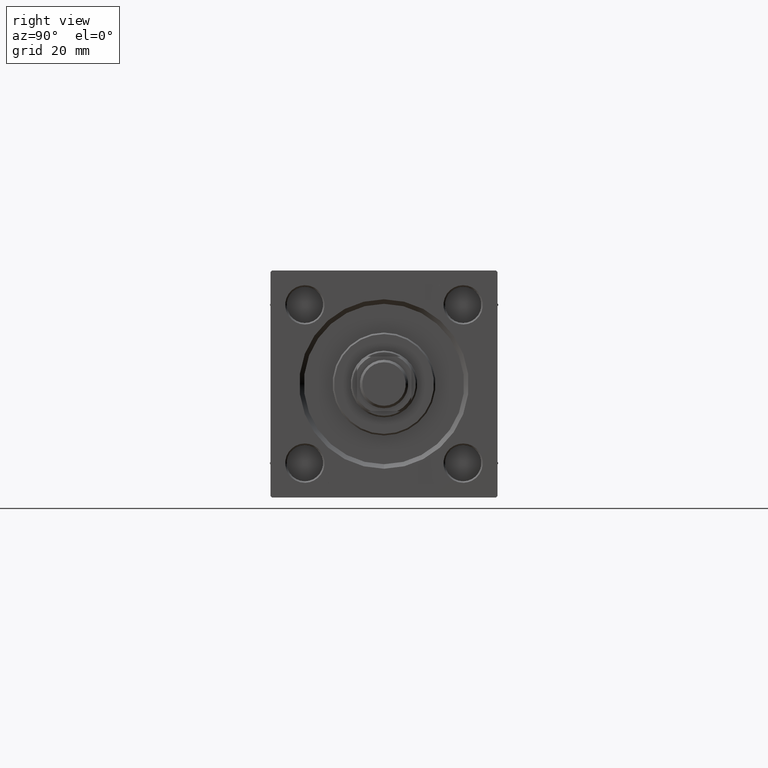
[diagram: clean part render]
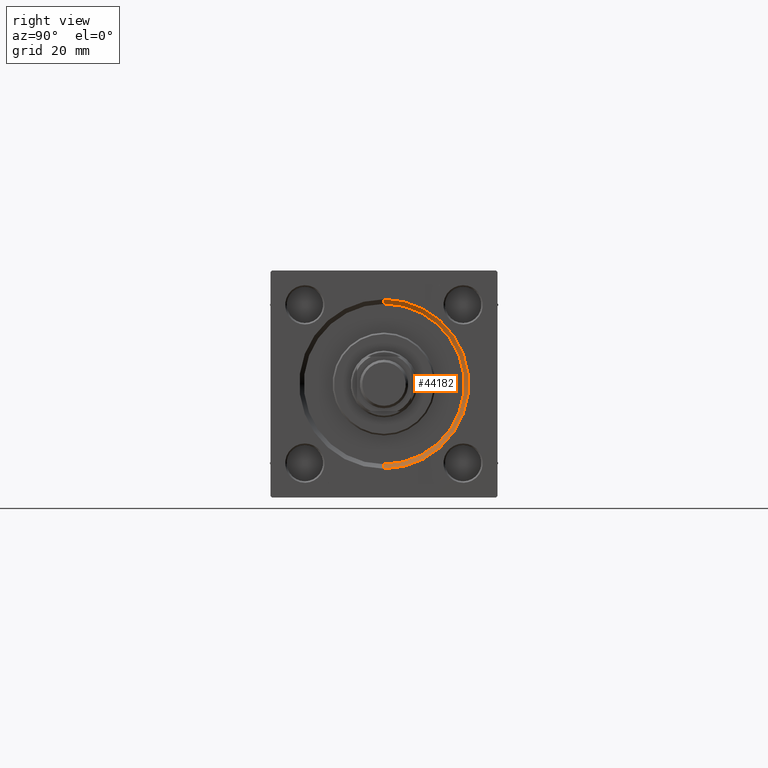
[diagram: same view with one face highlighted and labeled with its STEP entity id]
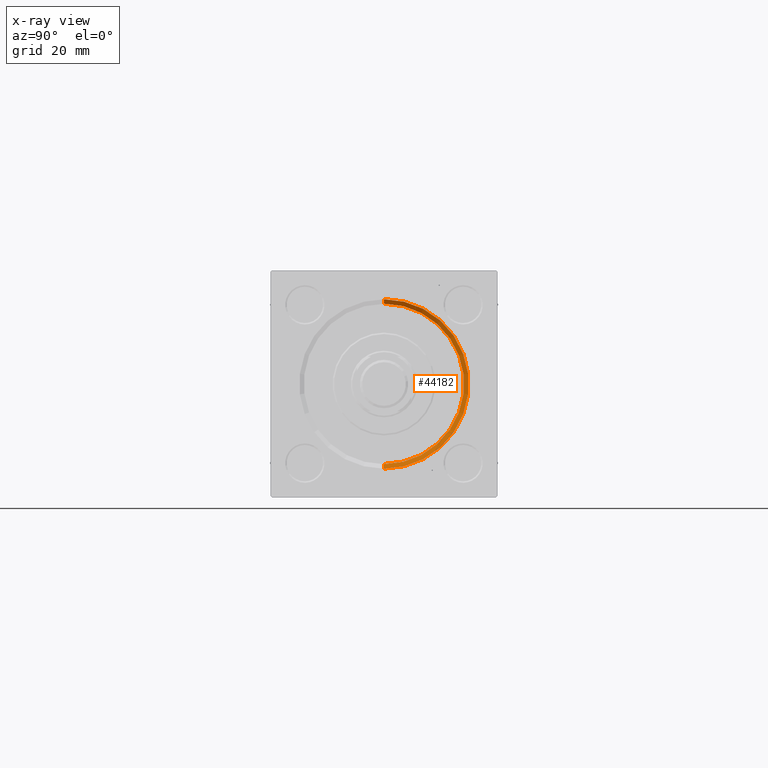
[diagram: x-ray of the same camera — body ghosted, the highlighted face saturated]
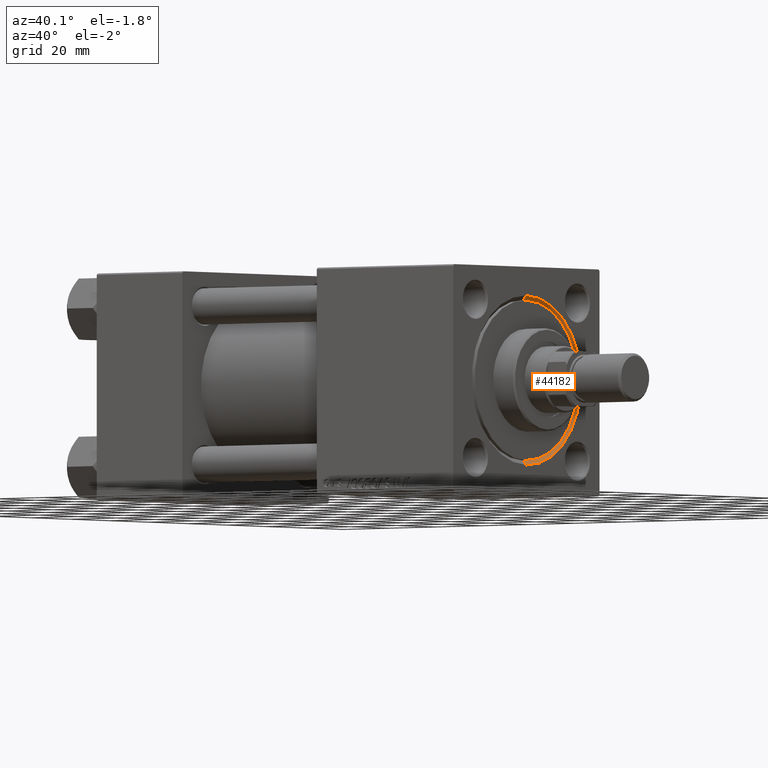
[diagram: same view with one face highlighted and labeled with its STEP entity id]
A machine part, right view. The second image highlights one B-rep face of the part: STEP entity #44182.
The next image is the same camera in x-ray: the body ghosted, the highlighted face saturated — about 0% of this face is hidden behind the body in this view.
A second angle (auxiliary view) of the same face is appended — the face is thin or edge-on in the first view.
In plain terms, the highlighted conical surface has half-angle 45 deg.
Its self-contained STEP definition (entity closure, byte-faithful):
#680 = DIRECTION ( 'NONE',  ( 1.000000000000000000, 0.000000000000000000, 0.000000000000000000 ) ) ;
#902 = AXIS2_PLACEMENT_3D ( 'NONE', #35773, #680, #16329 ) ;
#968 = ORIENTED_EDGE ( 'NONE', *, *, #1362, .F. ) ;
#1362 = EDGE_CURVE ( 'NONE', #31769, #27865, #11330, .T. ) ;
#2623 = EDGE_LOOP ( 'NONE', ( #968, #13484, #18294, #29579 ) ) ;
#3115 = EDGE_CURVE ( 'NONE', #27865, #11651, #25874, .T. ) ;
#10351 = AXIS2_PLACEMENT_3D ( 'NONE', #18079, #48557, #45215 ) ;
#11123 = VECTOR ( 'NONE', #31533, 1000.000000000000114 ) ;
#11231 = CARTESIAN_POINT ( 'NONE',  ( 152.5000000000000568, 3.245314017740486554E-15, 26.50000000000000355 ) ) ;
#11330 = LINE ( 'NONE', #27443, #11123 ) ;
#11651 = VERTEX_POINT ( 'NONE', #29953 ) ;
#13484 = ORIENTED_EDGE ( 'NONE', *, *, #17036, .F. ) ;
#14127 = CARTESIAN_POINT ( 'NONE',  ( 152.5000000000000568, 0.000000000000000000, -26.50000000000000355 ) ) ;
#16329 = DIRECTION ( 'NONE',  ( 0.000000000000000000, 0.000000000000000000, 1.000000000000000000 ) ) ;
#17036 = EDGE_CURVE ( 'NONE', #33169, #31769, #39341, .T. ) ;
#18079 = CARTESIAN_POINT ( 'NONE',  ( 154.0000000000000000, 0.000000000000000000, 0.000000000000000000 ) ) ;
#18294 = ORIENTED_EDGE ( 'NONE', *, *, #26468, .T. ) ;
#22311 = CARTESIAN_POINT ( 'NONE',  ( 154.0000000000000000, 3.429011037612588881E-15, 27.99999999999999645 ) ) ;
#25874 = CIRCLE ( 'NONE', #10351, 27.99999999999999645 ) ;
#26468 = EDGE_CURVE ( 'NONE', #33169, #11651, #37662, .T. ) ;
#26494 = FACE_OUTER_BOUND ( 'NONE', #2623, .T. ) ;
#27443 = CARTESIAN_POINT ( 'NONE',  ( 152.5000000000000568, 3.245314017740486554E-15, 26.50000000000000355 ) ) ;
#27508 = AXIS2_PLACEMENT_3D ( 'NONE', #31785, #39488, #35389 ) ;
#27865 = VERTEX_POINT ( 'NONE', #22311 ) ;
#29579 = ORIENTED_EDGE ( 'NONE', *, *, #3115, .F. ) ;
#29953 = CARTESIAN_POINT ( 'NONE',  ( 154.0000000000000000, 0.000000000000000000, -27.99999999999999645 ) ) ;
#30011 = CARTESIAN_POINT ( 'NONE',  ( 152.5000000000000568, 0.000000000000000000, -26.50000000000000355 ) ) ;
#31533 = DIRECTION ( 'NONE',  ( 0.7071067811865361374, 8.659560562355073374E-17, 0.7071067811865588970 ) ) ;
#31769 = VERTEX_POINT ( 'NONE', #11231 ) ;
#31785 = CARTESIAN_POINT ( 'NONE',  ( 152.5000000000000568, 0.000000000000000000, 0.000000000000000000 ) ) ;
#33169 = VERTEX_POINT ( 'NONE', #30011 ) ;
#35389 = DIRECTION ( 'NONE',  ( 0.000000000000000000, 0.000000000000000000, -1.000000000000000000 ) ) ;
#35773 = CARTESIAN_POINT ( 'NONE',  ( 152.5000000000000568, 0.000000000000000000, 0.000000000000000000 ) ) ;
#37662 = LINE ( 'NONE', #14127, #40234 ) ;
#39341 = CIRCLE ( 'NONE', #902, 26.50000000000000355 ) ;
#39488 = DIRECTION ( 'NONE',  ( 1.000000000000000000, 0.000000000000000000, 0.000000000000000000 ) ) ;
#40234 = VECTOR ( 'NONE', #40741, 1000.000000000000114 ) ;
#40741 = DIRECTION ( 'NONE',  ( 0.7071067811865361374, 0.000000000000000000, -0.7071067811865588970 ) ) ;
#44182 = ADVANCED_FACE ( 'NONE', ( #26494 ), #50399, .F. ) ;
#45215 = DIRECTION ( 'NONE',  ( 0.000000000000000000, 0.000000000000000000, 1.000000000000000000 ) ) ;
#48557 = DIRECTION ( 'NONE',  ( -1.000000000000000000, -0.000000000000000000, 0.000000000000000000 ) ) ;
#50399 = CONICAL_SURFACE ( 'NONE', #27508, 26.50000000000000355, 0.7853981633974644883 ) ;